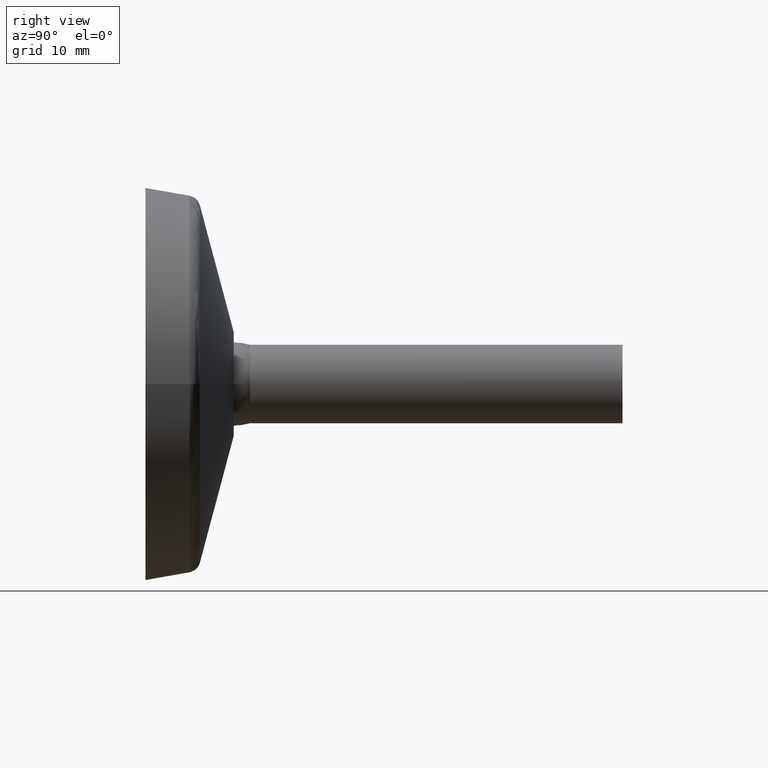
[diagram: clean part render]
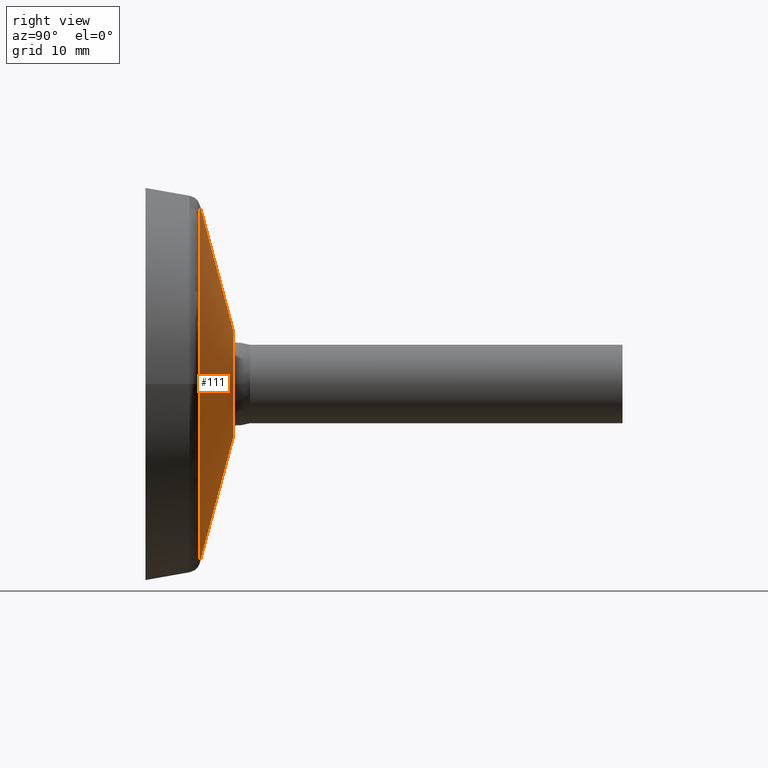
[diagram: same view with one face highlighted and labeled with its STEP entity id]
A machine part, right view. The second image highlights one B-rep face of the part: STEP entity #111.
In plain terms, the highlighted conical surface has half-angle 75.044 deg.
Its self-contained STEP definition (entity closure, byte-faithful):
#31=CONICAL_SURFACE('',#127,18.2946920771661,75.0439106804958);
#34=FACE_BOUND('',#55,.T.);
#44=FACE_OUTER_BOUND('',#54,.T.);
#54=EDGE_LOOP('',(#94));
#55=EDGE_LOOP('',(#95));
#69=CIRCLE('',#126,8.06340800728572);
#70=CIRCLE('',#128,27.357365361832);
#77=VERTEX_POINT('',#197);
#78=VERTEX_POINT('',#200);
#85=EDGE_CURVE('',#77,#77,#69,.T.);
#86=EDGE_CURVE('',#78,#78,#70,.T.);
#94=ORIENTED_EDGE('',*,*,#86,.F.);
#95=ORIENTED_EDGE('',*,*,#85,.F.);
#111=ADVANCED_FACE('',(#44,#34),#31,.T.);
#126=AXIS2_PLACEMENT_3D('',#198,#154,#155);
#127=AXIS2_PLACEMENT_3D('',#199,#156,#157);
#128=AXIS2_PLACEMENT_3D('',#201,#158,#159);
#154=DIRECTION('center_axis',(1.,0.,0.));
#155=DIRECTION('ref_axis',(0.,0.,-1.));
#156=DIRECTION('center_axis',(-1.,0.,0.));
#157=DIRECTION('ref_axis',(0.,0.,1.));
#158=DIRECTION('center_axis',(-1.,0.,0.));
#159=DIRECTION('ref_axis',(0.,0.,-1.));
#197=CARTESIAN_POINT('',(13.4830619489414,-1.97496536126832E-15,8.06340800728572));
#198=CARTESIAN_POINT('Origin',(13.4830619489414,-9.8748268063416E-16,0.));
#199=CARTESIAN_POINT('Origin',(10.75,0.,0.));
#200=CARTESIAN_POINT('',(8.32910665554443,0.,27.357365361832));
#201=CARTESIAN_POINT('Origin',(8.32910665554443,-3.35031099234722E-15,0.));